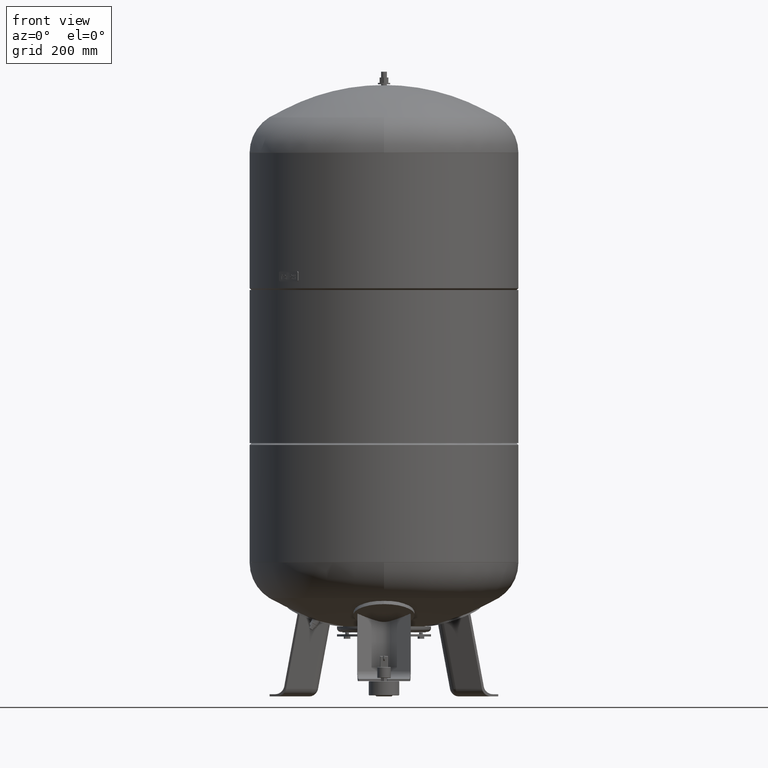
[diagram: clean part render]
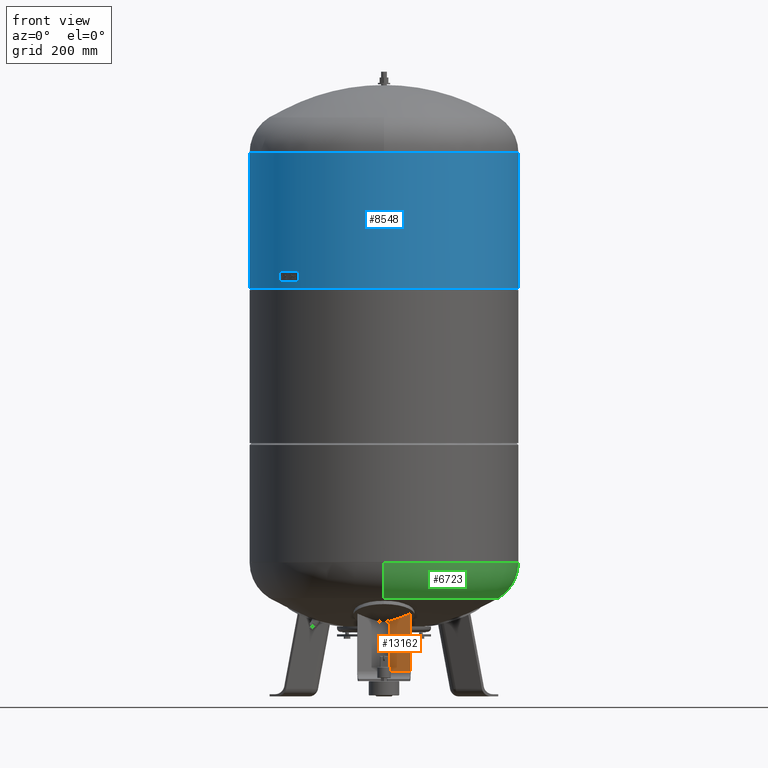
[diagram: same view with three faces highlighted in distinct colors, each labeled with its STEP entity id]
A machine part, front view with three faces highlighted in distinct colors.
Their STEP definitions:

[orange] entity #13162 — the highlighted planar face has unit normal (-0.6455, -0.7471, 0.1588).
#12902=CARTESIAN_POINT('',(16.136450826554562,-226.124712592942870,69.029948423057277));
#12903=VERTEX_POINT('',#12902);
#12912=CARTESIAN_POINT('',(72.837866169855033,-275.111649658243320,69.029948423057277));
#12913=VERTEX_POINT('',#12912);
#12921=CARTESIAN_POINT('',(72.837866169855033,-275.111649658243320,69.029948423057277));
#12922=DIRECTION('',(-0.756707249513242,0.653753882232530,0.0));
#12923=VECTOR('',#12922,74.931772333057609);
#12924=LINE('',#12921,#12923);
#12925=EDGE_CURVE('',#12913,#12903,#12924,.T.);
#13095=CARTESIAN_POINT('',(16.136450826554587,-196.761728826311810,207.171925955676390));
#13096=VERTEX_POINT('',#13095);
#13097=CARTESIAN_POINT('',(16.136450826554562,-226.124712592942870,69.029948423057277));
#13098=DIRECTION('',(1.760909E-016,0.207911690817760,0.978147600733805));
#13099=VECTOR('',#13098,141.228151486529360);
#13100=LINE('',#13097,#13099);
#13101=EDGE_CURVE('',#12903,#13096,#13100,.T.);
#13138=CARTESIAN_POINT('',(72.837866169855033,-304.181999304899880,-67.735293817669515));
#13139=DIRECTION('',(-0.645458033062182,-0.747104967402682,0.158802063077709));
#13140=DIRECTION('',(1.145783E-016,0.207911690817760,0.978147600733806));
#13141=AXIS2_PLACEMENT_3D('',#13138,#13139,#13140);
#13142=PLANE('',#13141);
#13143=CARTESIAN_POINT('',(72.837866169855076,-241.307868966901310,228.064232877750730));
#13144=VERTEX_POINT('',#13143);
#13145=CARTESIAN_POINT('',(72.837866169855033,-275.111649658243320,69.029948423057277));
#13146=DIRECTION('',(2.622135E-016,0.207911690817760,0.978147600733806));
#13147=VECTOR('',#13146,162.587204973345590);
#13148=LINE('',#13145,#13147);
#13149=EDGE_CURVE('',#12913,#13144,#13148,.T.);
#13150=ORIENTED_EDGE('',*,*,#13149,.T.);
#13151=CARTESIAN_POINT('',(-22.787907671158980,-41.761826315832167,778.179351684126460));
#13152=DIRECTION('',(0.645458033062182,0.747104967402682,-0.158802063077709));
#13153=DIRECTION('',(0.0,0.207911690817760,0.978147600733806));
#13154=AXIS2_PLACEMENT_3D('',#13151,#13152,#13153);
#13155=CIRCLE('',#13154,592.949876211934110);
#13156=EDGE_CURVE('',#13144,#13096,#13155,.T.);
#13157=ORIENTED_EDGE('',*,*,#13156,.T.);
#13158=ORIENTED_EDGE('',*,*,#13101,.F.);
#13159=ORIENTED_EDGE('',*,*,#12925,.F.);
#13160=EDGE_LOOP('',(#13150,#13157,#13158,#13159));
#13161=FACE_OUTER_BOUND('',#13160,.T.);
#13162=ADVANCED_FACE('',(#13161),#13142,.T.);

[blue] entity #8548 — the highlighted cylindrical surface (partial cylindrical patch) has radius 370 mm, axis along (0, 0, 1).
#8507=CARTESIAN_POINT('',(1.117467E-014,0.0,1309.833333333333500));
#8508=DIRECTION('',(2.961484E-017,0.0,1.0));
#8509=DIRECTION('',(1.0,0.0,0.0));
#8510=AXIS2_PLACEMENT_3D('',#8507,#8508,#8509);
#8511=CYLINDRICAL_SURFACE('',#8510,369.999999999999890);
#8512=CARTESIAN_POINT('',(370.0,0.0,1496.0));
#8513=VERTEX_POINT('',#8512);
#8514=CARTESIAN_POINT('',(369.999999999999720,0.0,1123.666666666666500));
#8515=VERTEX_POINT('',#8514);
#8516=CARTESIAN_POINT('',(370.0,0.0,1496.0));
#8517=DIRECTION('',(0.0,0.0,-1.0));
#8518=VECTOR('',#8517,372.333333333333480);
#8519=LINE('',#8516,#8518);
#8520=EDGE_CURVE('',#8513,#8515,#8519,.T.);
#8521=ORIENTED_EDGE('',*,*,#8520,.F.);
#8522=CARTESIAN_POINT('',(-369.999999999999890,-4.531044E-014,1496.0));
#8523=VERTEX_POINT('',#8522);
#8524=CARTESIAN_POINT('',(1.668796E-014,0.0,1496.0));
#8525=DIRECTION('',(0.0,0.0,1.0));
#8526=DIRECTION('',(1.0,0.0,0.0));
#8527=AXIS2_PLACEMENT_3D('',#8524,#8525,#8526);
#8528=CIRCLE('',#8527,370.0);
#8529=EDGE_CURVE('',#8523,#8513,#8528,.T.);
#8530=ORIENTED_EDGE('',*,*,#8529,.F.);
#8531=CARTESIAN_POINT('',(-369.999999999999720,-4.531044E-014,1123.666666666666500));
#8532=VERTEX_POINT('',#8531);
#8533=CARTESIAN_POINT('',(-369.999999999999890,-4.531044E-014,1496.0));
#8534=DIRECTION('',(0.0,0.0,-1.0));
#8535=VECTOR('',#8534,372.333333333333480);
#8536=LINE('',#8533,#8535);
#8537=EDGE_CURVE('',#8523,#8532,#8536,.T.);
#8538=ORIENTED_EDGE('',*,*,#8537,.T.);
#8539=CARTESIAN_POINT('',(5.661371E-015,0.0,1123.666666666666500));
#8540=DIRECTION('',(0.0,0.0,1.0));
#8541=DIRECTION('',(1.0,0.0,0.0));
#8542=AXIS2_PLACEMENT_3D('',#8539,#8540,#8541);
#8543=CIRCLE('',#8542,369.999999999999720);
#8544=EDGE_CURVE('',#8532,#8515,#8543,.T.);
#8545=ORIENTED_EDGE('',*,*,#8544,.T.);
#8546=EDGE_LOOP('',(#8521,#8530,#8538,#8545));
#8547=FACE_OUTER_BOUND('',#8546,.T.);
#8548=ADVANCED_FACE('',(#8547),#8511,.T.);

[green] entity #6723 — the highlighted toroidal blend (fillet) surface has major radius 254.5 mm and minor (blend) radius 115.5 mm.
#6569=CARTESIAN_POINT('',(370.0,1.062956E-014,368.793879611869560));
#6570=VERTEX_POINT('',#6569);
#6577=CARTESIAN_POINT('',(-4.531044E-014,369.999999999999940,368.793879611869610));
#6578=VERTEX_POINT('',#6577);
#6579=CARTESIAN_POINT('',(0.0,-3.468087E-014,368.793879611869560));
#6580=DIRECTION('',(0.0,0.0,1.0));
#6581=DIRECTION('',(-1.0,0.0,0.0));
#6582=AXIS2_PLACEMENT_3D('',#6579,#6580,#6581);
#6583=CIRCLE('',#6582,370.0);
#6584=EDGE_CURVE('',#6570,#6578,#6583,.T.);
#6601=CARTESIAN_POINT('',(0.0,-370.000000000000060,368.793879611869500));
#6602=VERTEX_POINT('',#6601);
#6603=CARTESIAN_POINT('',(0.0,-315.931034482758610,270.985505725079410));
#6604=VERTEX_POINT('',#6603);
#6605=CARTESIAN_POINT('',(0.0,-254.500000000000060,368.793879611869500));
#6606=DIRECTION('',(1.0,0.0,0.0));
#6607=DIRECTION('',(0.0,-1.0,0.0));
#6608=AXIS2_PLACEMENT_3D('',#6605,#6606,#6607);
#6609=CIRCLE('',#6608,115.500000000000000);
#6610=EDGE_CURVE('',#6602,#6604,#6609,.T.);
#6620=CARTESIAN_POINT('',(-3.868912E-014,315.931034482758610,270.985505725079630));
#6621=VERTEX_POINT('',#6620);
#6622=CARTESIAN_POINT('',(-3.116623E-014,254.500000000000000,368.793879611869610));
#6623=DIRECTION('',(-1.0,0.0,0.0));
#6624=DIRECTION('',(0.0,1.0,0.0));
#6625=AXIS2_PLACEMENT_3D('',#6622,#6623,#6624);
#6626=CIRCLE('',#6625,115.500000000000000);
#6627=EDGE_CURVE('',#6578,#6621,#6626,.T.);
#6655=CARTESIAN_POINT('',(0.0,-1.671377E-014,270.985505725079520));
#6656=DIRECTION('',(0.0,0.0,1.0));
#6657=DIRECTION('',(-1.0,0.0,0.0));
#6658=AXIS2_PLACEMENT_3D('',#6655,#6656,#6657);
#6659=CIRCLE('',#6658,315.931034482758610);
#6660=EDGE_CURVE('',#6604,#6621,#6659,.T.);
#6705=CARTESIAN_POINT('',(0.0,-3.468087E-014,368.793879611869560));
#6706=DIRECTION('',(0.0,-1.836970E-016,1.0));
#6707=DIRECTION('',(0.0,-1.0,0.0));
#6708=AXIS2_PLACEMENT_3D('',#6705,#6706,#6707);
#6709=TOROIDAL_SURFACE('',#6708,254.500000000000030,115.500000000000000);
#6710=ORIENTED_EDGE('',*,*,#6610,.T.);
#6711=ORIENTED_EDGE('',*,*,#6660,.T.);
#6712=ORIENTED_EDGE('',*,*,#6627,.F.);
#6713=ORIENTED_EDGE('',*,*,#6584,.F.);
#6714=CARTESIAN_POINT('',(0.0,-3.468087E-014,368.793879611869560));
#6715=DIRECTION('',(0.0,0.0,1.0));
#6716=DIRECTION('',(-1.0,0.0,0.0));
#6717=AXIS2_PLACEMENT_3D('',#6714,#6715,#6716);
#6718=CIRCLE('',#6717,370.0);
#6719=EDGE_CURVE('',#6602,#6570,#6718,.T.);
#6720=ORIENTED_EDGE('',*,*,#6719,.F.);
#6721=EDGE_LOOP('',(#6710,#6711,#6712,#6713,#6720));
#6722=FACE_OUTER_BOUND('',#6721,.T.);
#6723=ADVANCED_FACE('',(#6722),#6709,.T.);